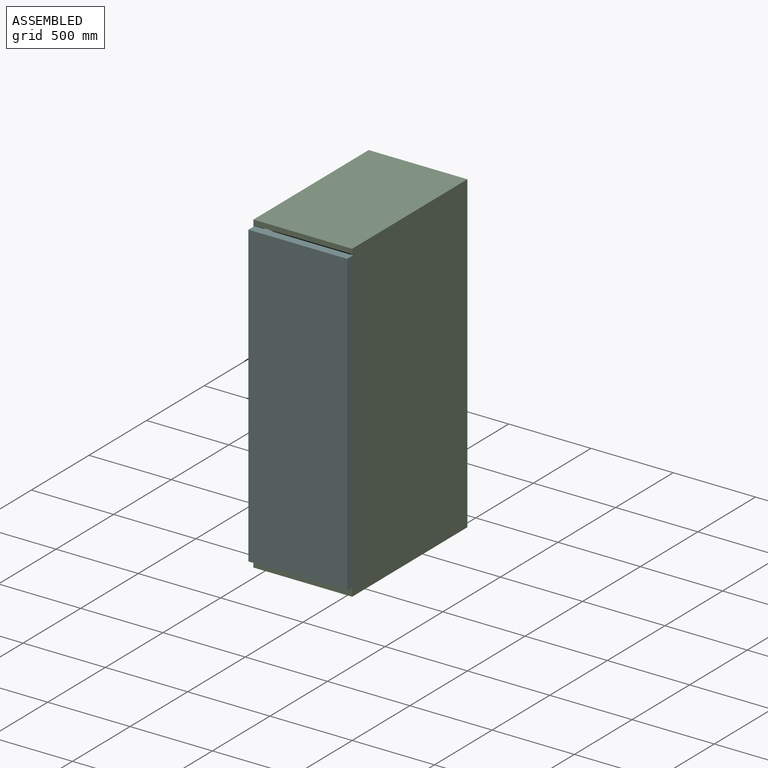
[diagram: assembled view]
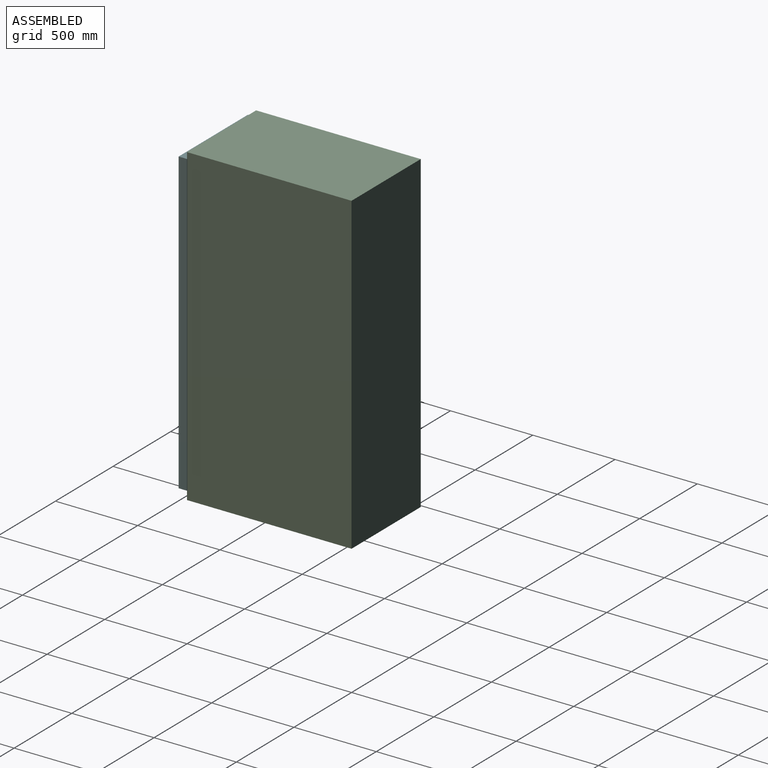
[diagram: assembled view, second angle]
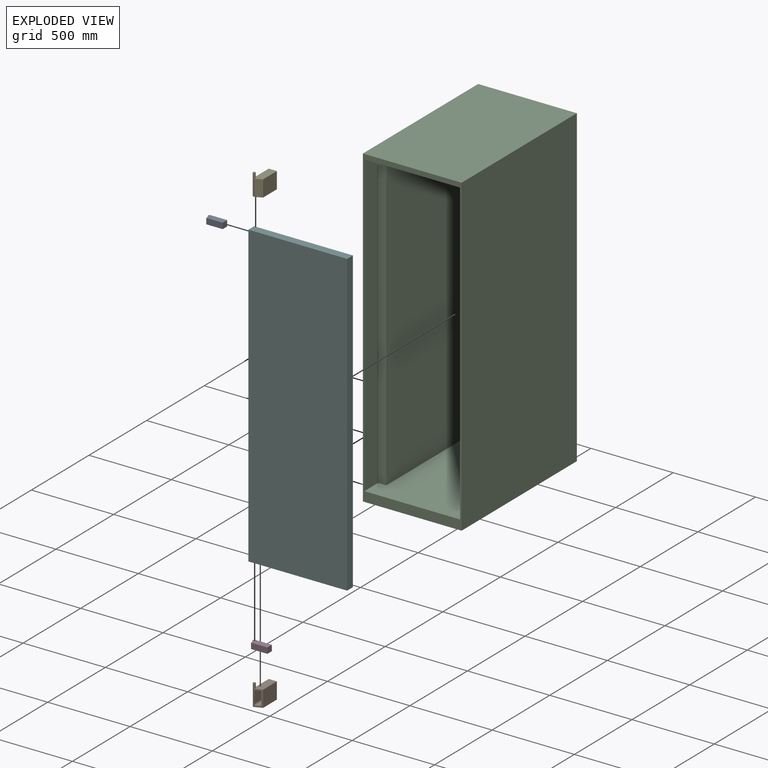
[diagram: exploded view]
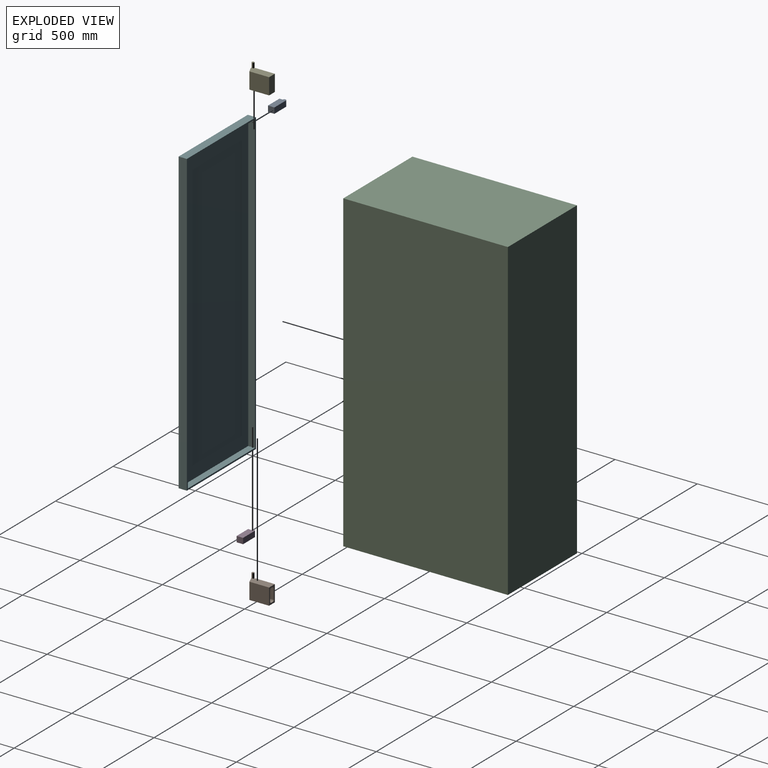
[diagram: exploded view, second angle]
ASSEMBLY  parts=6 mates=5
PART A: 9 faces, bbox 109.5x39x35 mm
  f0: plane 35x20mm, normal (-1,0,0), area 700mm2, adj f1,f5,f7,f8
  f1: cylinder r=9.5mm len=35mm, axis (0,0,-1), area 1044.6mm2, adj f0,f2,f5,f8
  f2: plane 100x35mm, normal (0,-1,0), area 3500mm2, adj f1,f3,f5,f8
  f3: plane 39x35mm, normal (1,0,0), area 1365mm2, adj f2,f5,f7,f8
  f4: cylinder r=9mm len=30mm, axis (0,0,-1), area 1696.5mm2, adj f5,f6
  f5: plane 109.5x39mm, normal (0,0,1), area 3787.3mm2, adj f0,f1,f2,f3,f4,f7
  f6: plane 18x18mm, normal (0,0,1), area 254.5mm2, adj f4
  f7: plane 100x35mm, normal (0,1,0), area 3500mm2, adj f0,f3,f5,f8
  f8: plane 109.5x39mm, normal (0,0,-1), area 4041.8mm2, adj f0,f1,f2,f3,f7
PART B: 19 faces, bbox 53.7x137.5x130 mm
  f0: plane 100x49.7mm, normal (0,1,0), area 2440.1mm2, adj f2,f3,f4,f5,f11,f12,f13,f14
  f1: plane 100x3.5mm, normal (0,-1,0), area 350mm2, adj f2,f3,f4,f6
  f2: plane 137.5x49.7mm, normal (0,0,1), area 6320.1mm2, adj f0,f1,f3,f5,f6,f7,f8,f9
  f3: plane 120x100mm, normal (-1,0,0), area 12000mm2, adj f0,f1,f2,f4
  f4: plane 137.5x53.7mm, normal (0,0,-1), area 6496.9mm2, adj f0,f1,f3,f5,f6,f7,f8,f9
  f5: plane 120x100mm, normal (1,0,0), area 12000mm2, adj f0,f2,f4,f9
  f6: plane 100x2.5mm, normal (-1,0,0), area 250mm2, adj f1,f2,f4,f7
  f7: cylinder r=7.5mm len=130mm, axis (0,0,1), area 3769.9mm2, adj f2,f4,f6,f8,f10
  f8: plane 100x4.6mm, normal (0,-1,0), area 460.1mm2, adj f2,f4,f7,f9
  f9: plane 100x41.6mm, normal (0.39,-0.92,0), area 1768.4mm2, adj f2,f4,f5,f8,f11,f12,f13,f14
  f10: plane 15x15mm, normal (0,0,1), area 176.7mm2, adj f7
  f11: plane 133.34x13.7mm, normal (0,0,-1), area 1787.2mm2, adj f0,f9,f16,f18
  f12: plane 123.79x64mm, normal (-1,0,0), area 7922.3mm2, adj f0,f9,f17,f18
  f13: plane 133.34x13.7mm, normal (0,0,1), area 1787.2mm2, adj f0,f9,f15,f17
  f14: plane 137.12x64mm, normal (1,0,0), area 8775.8mm2, adj f0,f9,f15,f16
  f15: cylinder r=9mm len=137.12mm, axis (0,1,0), area 1919.1mm2, adj f0,f9,f13,f14
  f16: cylinder r=9mm len=137.12mm, axis (0,1,0), area 1919.1mm2, adj f0,f9,f11,f14
  f17: cylinder r=9mm len=127.57mm, axis (0,1,0), area 1769.4mm2, adj f0,f9,f12,f13
  f18: cylinder r=9mm len=127.57mm, axis (0,1,0), area 1769.4mm2, adj f0,f9,f11,f12
PART C: 15 faces, bbox 600x1000x1911 mm
  f0: plane 1911x600mm, normal (0,-1,0), area 86196mm2, adj f2,f4,f5,f6,f7,f8,f11,f13
  f1: plane 1822x871mm, normal (-1,0,0), area 1586962mm2, adj f2,f4,f10,f12
  f2: plane 991x582mm, normal (0,0,1), area 490184.6mm2, adj f0,f1,f3,f10,f11,f12,f13,f14
  f3: plane 1822x871mm, normal (1,0,0), area 1586962mm2, adj f2,f4,f10,f14
  f4: plane 991x582mm, normal (0,0,-1), area 490184.6mm2, adj f0,f1,f3,f10,f11,f12,f13,f14
  f5: plane 1000x600mm, normal (0,0,-1), area 600000mm2, adj f0,f6,f8,f9
  f6: plane 1911x1000mm, normal (1,0,0), area 1911000mm2, adj f0,f5,f7,f9
  f7: plane 1000x600mm, normal (0,0,1), area 600000mm2, adj f0,f6,f8,f9
  f8: plane 1911x1000mm, normal (-1,0,0), area 1911000mm2, adj f0,f5,f7,f9
  f9: plane 1911x600mm, normal (0,1,0), area 1146600mm2, adj f5,f6,f7,f8
  f10: plane 1822x482.6mm, normal (0,-1,0), area 879297.2mm2, adj f1,f2,f3,f4
  f11: plane 1822x120mm, normal (-1,0,0), area 218640mm2, adj f0,f2,f4,f12
  f12: plane 1822x49.7mm, normal (0,-1,0), area 90553.4mm2, adj f1,f2,f4,f11
  f13: plane 1822x120mm, normal (1,0,0), area 218640mm2, adj f0,f2,f4,f14
  f14: plane 1822x49.7mm, normal (0,-1,0), area 90553.4mm2, adj f2,f3,f4,f13
PART D: same geometry as A
PART E: 11 faces, bbox 54x137.5x130 mm
  f0: plane 100x3.2mm, normal (0,-1,0), area 320mm2, adj f1,f2,f4,f9
  f1: plane 120x100mm, normal (-1,0,0), area 12000mm2, adj f0,f2,f4,f5
  f2: plane 137.5x54mm, normal (0,0,-1), area 6540.7mm2, adj f0,f1,f3,f5,f6,f7,f8,f9
  f3: plane 120x100mm, normal (1,0,0), area 12000mm2, adj f2,f4,f5,f8
  f4: plane 137.5x49.7mm, normal (0,0,1), area 6364mm2, adj f0,f1,f3,f5,f6,f7,f8,f9
  f5: plane 100x49.7mm, normal (0,1,0), area 4970mm2, adj f1,f2,f3,f4
  f6: cylinder r=7.5mm len=130mm, axis (0,0,1), area 3769.9mm2, adj f2,f4,f7,f9,f10
  f7: plane 100x9.31mm, normal (0,-1,0), area 931.2mm2, adj f2,f4,f6,f8
  f8: plane 100x37.19mm, normal (0.43,-0.9,0), area 4109.9mm2, adj f2,f3,f4,f7
  f9: plane 100x2.5mm, normal (-1,0,0), area 250mm2, adj f0,f2,f4,f6
  f10: plane 15x15mm, normal (0,0,1), area 176.7mm2, adj f6
PART F: 11 faces, bbox 600x50x1822 mm
  f0: plane 1822x600mm, normal (0,1,0), area 43272mm2, adj f1,f2,f3,f4,f6,f7,f8,f9
  f1: plane 600x50mm, normal (0,0,-1), area 30000mm2, adj f0,f2,f4,f5
  f2: plane 1822x50mm, normal (1,0,0), area 91100mm2, adj f0,f1,f3,f5
  f3: plane 600x50mm, normal (0,0,1), area 30000mm2, adj f0,f2,f4,f5
  f4: plane 1822x50mm, normal (-1,0,0), area 91100mm2, adj f0,f1,f3,f5
  f5: plane 1822x600mm, normal (0,-1,0), area 1093200mm2, adj f1,f2,f3,f4
  f6: plane 582x41mm, normal (0,0,1), area 23862mm2, adj f0,f7,f9,f10
  f7: plane 1804x41mm, normal (-1,0,0), area 73964mm2, adj f0,f6,f8,f10
  f8: plane 582x41mm, normal (0,0,-1), area 23862mm2, adj f0,f7,f9,f10
  f9: plane 1804x41mm, normal (1,0,0), area 73964mm2, adj f0,f6,f8,f10
  f10: plane 1804x582mm, normal (0,1,0), area 1049928mm2, adj f6,f7,f8,f9
PLACE A rot(axis=(1,0,0),180deg) t=(-587.8,-1010,1861)mm
PLACE B t=(-300,-1000,970)mm
PLACE C t=(-300,-1000,970)mm
PLACE D rot(axis=(1,0,0),180deg) t=(-587.5,-1010,189)mm
PLACE E t=(-300,-1000,970)mm
PLACE F t=(-296.8,-898.5,964)mm
MATE fastened A.f7 <-> F.f10  axis (0,-1,0) through (-587.8,-1039.5,1866)mm
MATE revolute D.f1 <-> B.f7  axis (0,0,-1) through (-587.5,-1010,159)mm
MATE revolute A.f1 <-> E.f6  axis (0,0,-1) through (-587.8,-1010,1831)mm
MATE fastened B.f0 <-> C.f14  axis (0,1,0) through (-566.15,-880,59)mm
MATE fastened E.f5 <-> C.f14  axis (0,1,0) through (-566.15,-880,1831)mm
